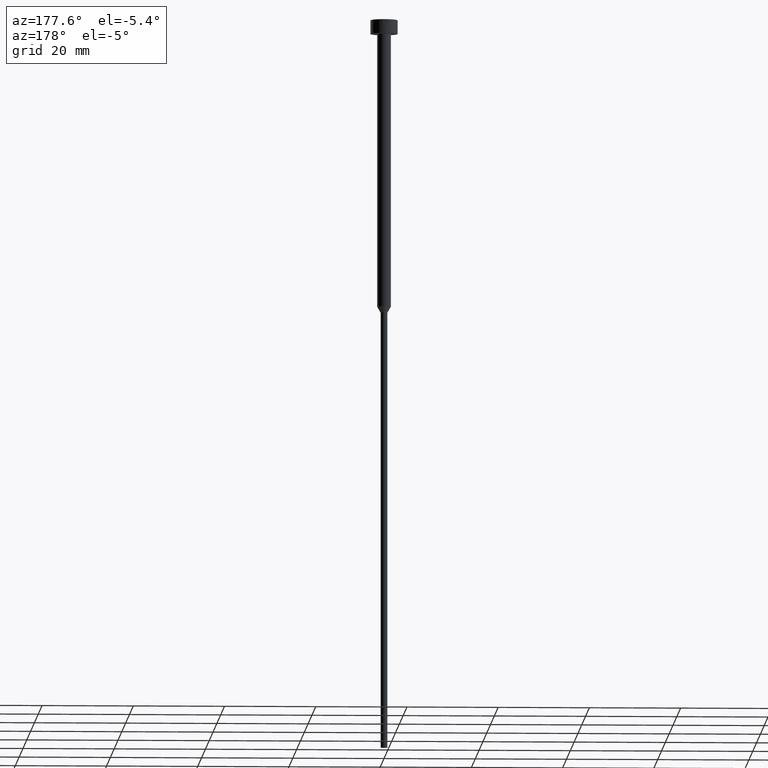
[diagram: clean part render]
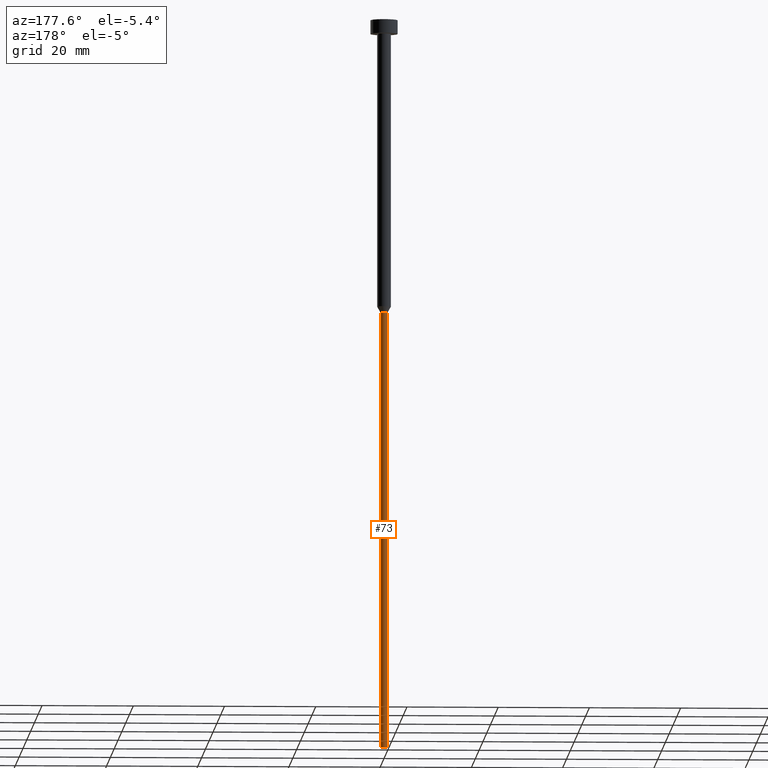
[diagram: same view with one face highlighted and labeled with its STEP entity id]
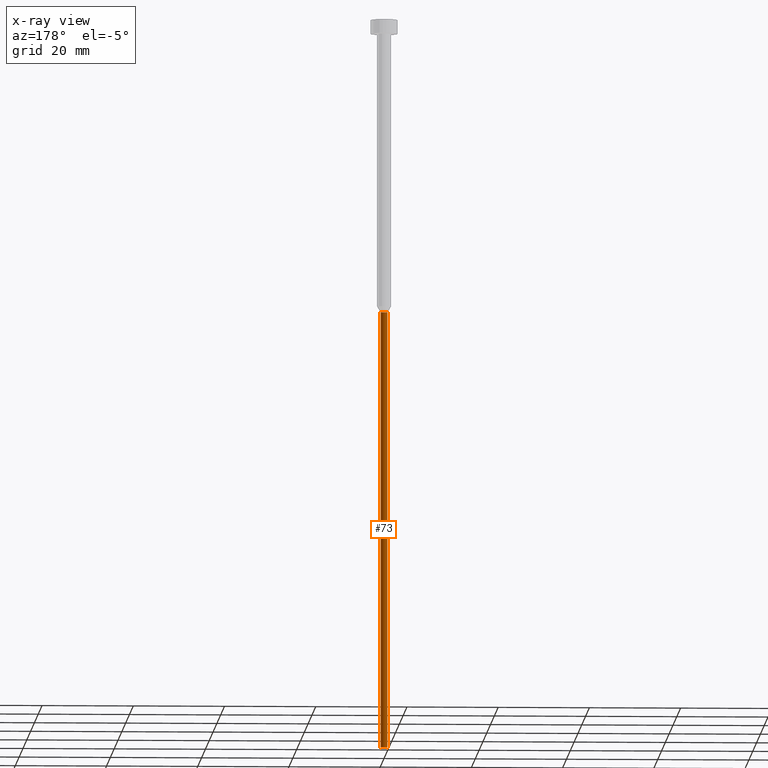
[diagram: x-ray of the same camera — body ghosted, the highlighted face saturated]
A machine part, auxiliary view. The second image highlights one B-rep face of the part: STEP entity #73.
The next image is the same camera in x-ray: the body ghosted, the highlighted face saturated — about 0% of this face is hidden behind the body in this view.
In plain terms, the highlighted cylindrical surface (edge-blend (fillet) strip) has radius 0.75 mm, axis along (-0, -0, 1).
Its self-contained STEP definition (entity closure, byte-faithful):
#2 = CARTESIAN_POINT ( 'NONE',  ( 0.7500000000000000000, 0.000000000000000000, 0.000000000000000000 ) ) ;
#6 = CYLINDRICAL_SURFACE ( 'NONE', #177, 0.7500000000000000000 ) ;
#12 = VERTEX_POINT ( 'NONE', #74 ) ;
#22 = DIRECTION ( 'NONE',  ( -0.000000000000000000, -0.000000000000000000, 1.000000000000000000 ) ) ;
#26 = EDGE_CURVE ( 'NONE', #153, #12, #139, .T. ) ;
#33 = CIRCLE ( 'NONE', #272, 0.7500000000000000000 ) ;
#39 = DIRECTION ( 'NONE',  ( 1.000000000000000000, 0.000000000000000000, 0.000000000000000000 ) ) ;
#56 = CARTESIAN_POINT ( 'NONE',  ( 0.000000000000000000, 0.000000000000000000, 0.000000000000000000 ) ) ;
#57 = DIRECTION ( 'NONE',  ( -0.000000000000000000, -0.000000000000000000, 1.000000000000000000 ) ) ;
#73 = ADVANCED_FACE ( 'NONE', ( #145 ), #6, .T. ) ;
#74 = CARTESIAN_POINT ( 'NONE',  ( 0.7500000000000000000, 0.000000000000000000, -64.29903810567664380 ) ) ;
#89 = VERTEX_POINT ( 'NONE', #202 ) ;
#96 = CARTESIAN_POINT ( 'NONE',  ( 0.000000000000000000, 0.000000000000000000, -64.29903810567664380 ) ) ;
#97 = ORIENTED_EDGE ( 'NONE', *, *, #140, .T. ) ;
#103 = CIRCLE ( 'NONE', #200, 0.7500000000000000000 ) ;
#109 = DIRECTION ( 'NONE',  ( -0.000000000000000000, -0.000000000000000000, 1.000000000000000000 ) ) ;
#114 = CARTESIAN_POINT ( 'NONE',  ( 0.7500000000000000000, 0.000000000000000000, -160.0000000000000000 ) ) ;
#115 = DIRECTION ( 'NONE',  ( -0.000000000000000000, -0.000000000000000000, 1.000000000000000000 ) ) ;
#116 = VECTOR ( 'NONE', #186, 1000.000000000000000 ) ;
#121 = ORIENTED_EDGE ( 'NONE', *, *, #26, .F. ) ;
#139 = LINE ( 'NONE', #2, #297 ) ;
#140 = EDGE_CURVE ( 'NONE', #153, #260, #33, .T. ) ;
#145 = FACE_OUTER_BOUND ( 'NONE', #267, .T. ) ;
#153 = VERTEX_POINT ( 'NONE', #114 ) ;
#177 = AXIS2_PLACEMENT_3D ( 'NONE', #56, #115, #280 ) ;
#186 = DIRECTION ( 'NONE',  ( -0.000000000000000000, -0.000000000000000000, 1.000000000000000000 ) ) ;
#195 = EDGE_CURVE ( 'NONE', #260, #89, #295, .T. ) ;
#200 = AXIS2_PLACEMENT_3D ( 'NONE', #96, #22, #39 ) ;
#202 = CARTESIAN_POINT ( 'NONE',  ( -0.7500000000000000000, 9.184850993605149670E-17, -64.29903810567664380 ) ) ;
#213 = ORIENTED_EDGE ( 'NONE', *, *, #248, .F. ) ;
#248 = EDGE_CURVE ( 'NONE', #12, #89, #103, .T. ) ;
#250 = CARTESIAN_POINT ( 'NONE',  ( -0.7500000000000000000, 9.184850993605149670E-17, -160.0000000000000000 ) ) ;
#256 = DIRECTION ( 'NONE',  ( 1.000000000000000000, 0.000000000000000000, 0.000000000000000000 ) ) ;
#260 = VERTEX_POINT ( 'NONE', #250 ) ;
#267 = EDGE_LOOP ( 'NONE', ( #97, #306, #213, #121 ) ) ;
#272 = AXIS2_PLACEMENT_3D ( 'NONE', #281, #57, #256 ) ;
#280 = DIRECTION ( 'NONE',  ( 1.000000000000000000, 0.000000000000000000, 0.000000000000000000 ) ) ;
#281 = CARTESIAN_POINT ( 'NONE',  ( 0.000000000000000000, 0.000000000000000000, -160.0000000000000000 ) ) ;
#295 = LINE ( 'NONE', #349, #116 ) ;
#297 = VECTOR ( 'NONE', #109, 1000.000000000000000 ) ;
#306 = ORIENTED_EDGE ( 'NONE', *, *, #195, .T. ) ;
#349 = CARTESIAN_POINT ( 'NONE',  ( -0.7500000000000000000, 9.184850993605149670E-17, 0.000000000000000000 ) ) ;